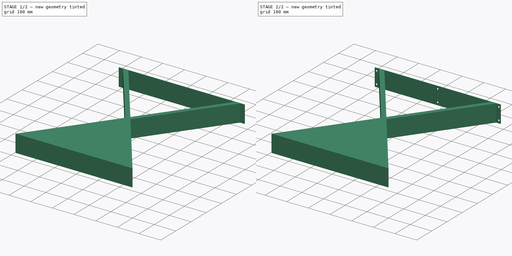
[diagram: build sequence overview — one tinted view per stage of 2, left to right]
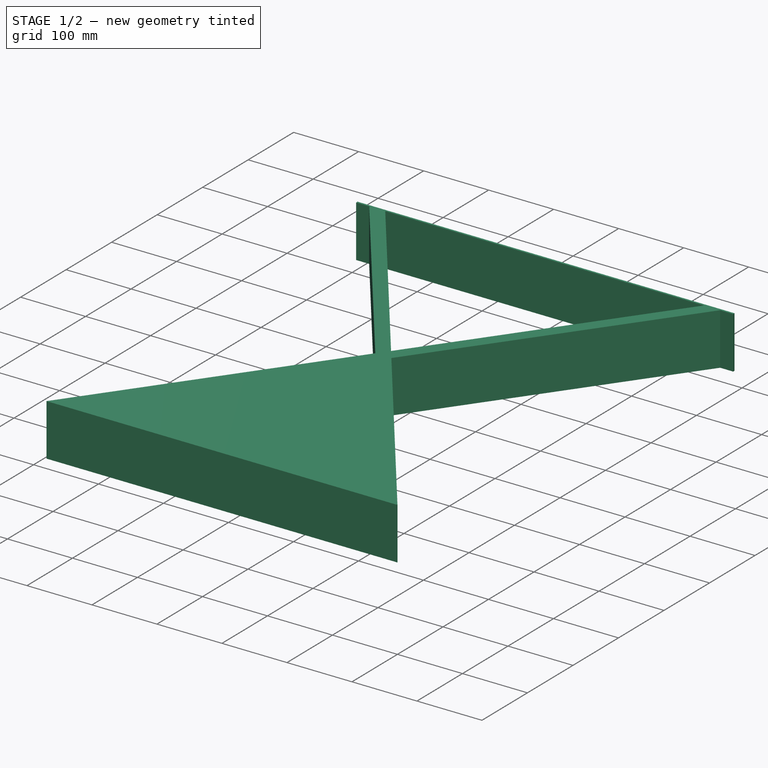
[diagram: stage 1 of 2 — iso view after this stage's code; geometry added in this stage tinted green]
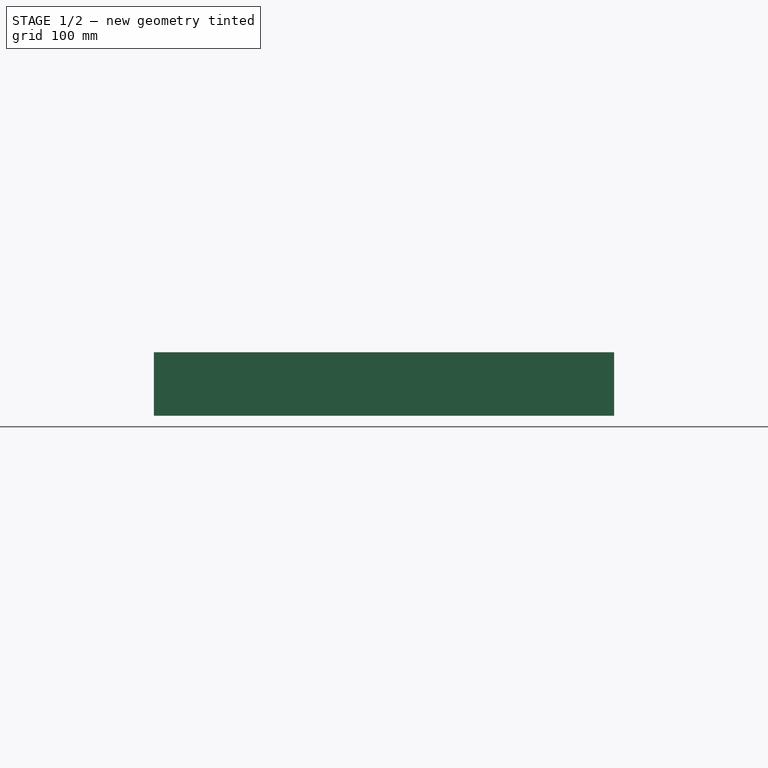
[diagram: stage 1 of 2 — front view after this stage's code; geometry added in this stage tinted green]
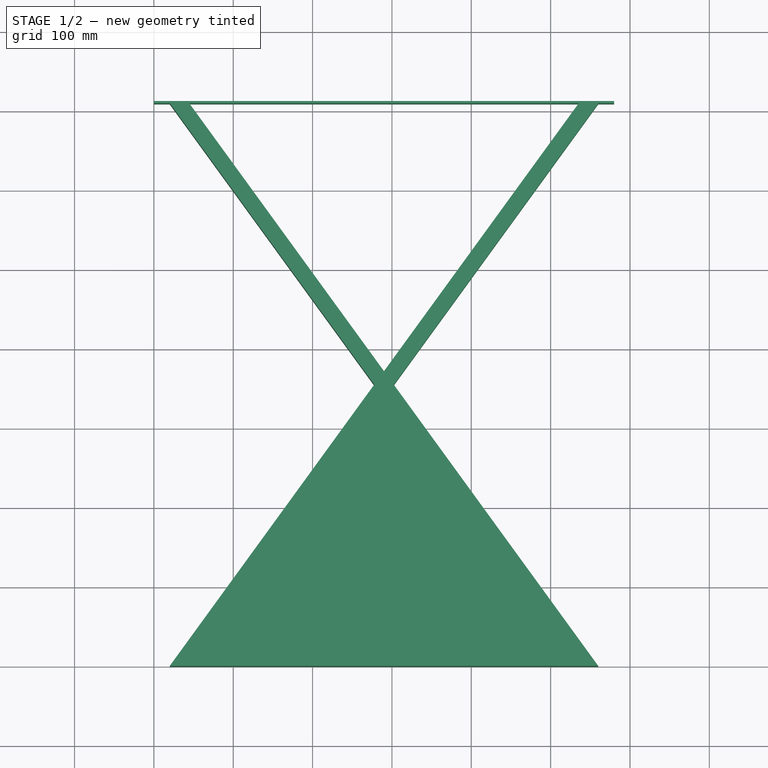
[diagram: stage 1 of 2 — top view after this stage's code; geometry added in this stage tinted green]
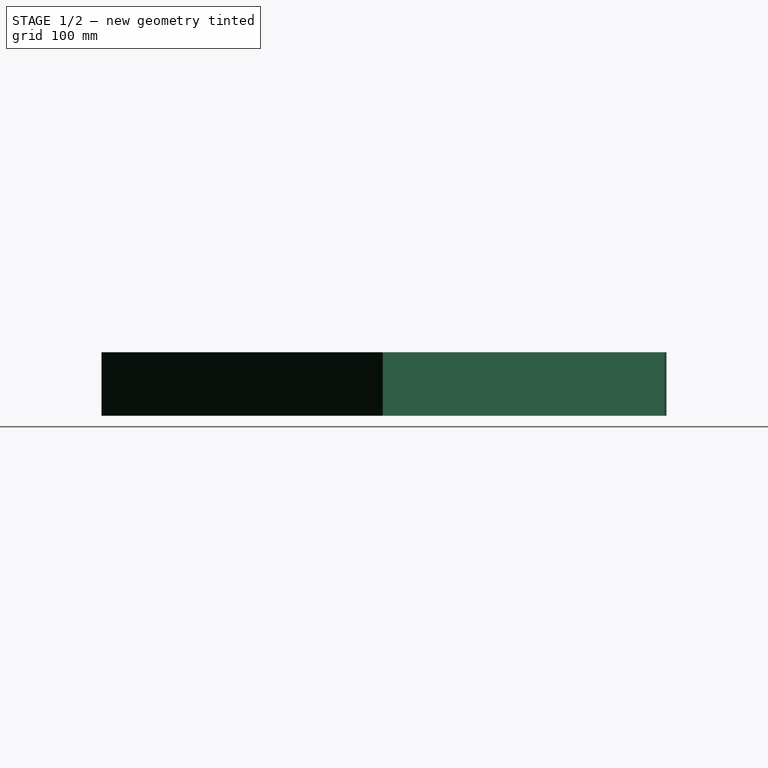
[diagram: stage 1 of 2 — right view after this stage's code; geometry added in this stage tinted green]
FCSTD DOCUMENT  (FreeCAD 1.0R39109 (Git))
Label: Pieds_REI-acier-57
License: All rights reserved
LicenseURL: http://en.wikipedia.org/wiki/All_rights_reserved
objects: Sketcher::SketchObject×2, PartDesign::Pad×1, PartDesign::Pocket×1, PartDesign::Body×1, App::Part×1
note: 11 computed .brp shape members not serialized (recipe doc carries the construction recipe); baked Part::Feature solids carry a one-line shape summary decoded from their .brp

FEATURE [Sketcher::SketchObject] Sketch
  ArcFitTolerance = 1e-06
  AttachmentSupport = -> [XY_Plane]
  FullyConstrained = true
  MakeInternals = false
  MapMode = 5
  sketch-geometry (20):
    g0: LineSegment StartX=20 StartY=0 StartZ=0 EndX=560 EndY=2.42e-14 EndZ=0
    g1: LineSegment [constr] StartX=533.096 StartY=3 StartZ=0 EndX=46.9043 EndY=3 EndZ=0
    g2: LineSegment [constr] StartX=46.9043 StartY=3 StartZ=0 EndX=290 EndY=337.49 EndZ=0
    g3: LineSegment StartX=20 StartY=0 StartZ=0 EndX=277.638 EndY=354.5 EndZ=0
    g4: LineSegment StartX=44.724 StartY=709 StartZ=0 EndX=290 EndY=371.51 EndZ=0
    g5: LineSegment StartX=290 StartY=371.51 StartZ=0 EndX=535.276 EndY=709 EndZ=0
    g6: LineSegment StartX=302.362 StartY=354.5 StartZ=0 EndX=560 EndY=2.42e-14 EndZ=0
    g7: LineSegment [constr] StartX=533.096 StartY=3 StartZ=0 EndX=290 EndY=337.49 EndZ=0
    g8: LineSegment StartX=302.362 StartY=354.5 StartZ=0 EndX=560 EndY=709 EndZ=0
    g9: LineSegment StartX=277.638 StartY=354.5 StartZ=0 EndX=20 EndY=709 EndZ=0
    g10: LineSegment [constr] StartX=277.638 StartY=354.5 StartZ=0 EndX=290 EndY=371.51 EndZ=0
    g11: LineSegment [constr] StartX=290 StartY=371.51 StartZ=0 EndX=302.362 EndY=354.5 EndZ=0
    g12: LineSegment [constr] StartX=302.362 StartY=354.5 StartZ=0 EndX=290 EndY=337.49 EndZ=0
    g13: LineSegment [constr] StartX=290 StartY=337.49 StartZ=0 EndX=277.638 EndY=354.5 EndZ=0
    g14: LineSegment StartX=20 StartY=709 StartZ=0 EndX=0 EndY=709 EndZ=0
    g15: LineSegment StartX=0 StartY=709 StartZ=0 EndX=0 EndY=712 EndZ=0
    g16: LineSegment StartX=0 StartY=712 StartZ=0 EndX=580 EndY=712 EndZ=0
    g17: LineSegment StartX=535.276 StartY=709 StartZ=0 EndX=44.724 EndY=709 EndZ=0
    g18: LineSegment StartX=560 StartY=709 StartZ=0 EndX=580 EndY=709 EndZ=0
    g19: LineSegment StartX=580 StartY=712 StartZ=0 EndX=580 EndY=709 EndZ=0
  constraints (55):
    c: Distance(g0) = 540
    c: PointOnObject(g15,g-2)
    c: Horizontal(g1)
    c: Coincident(g2,g1)
    c: Coincident(g3,g0)
    c: Coincident(g5,g4)
    c: Coincident(g6,g0)
    c: Coincident(g7,g1)
    c: Coincident(g7,g2)
    c: Parallel(g6,g4)
    c: Parallel(g3,g5)
    c: Distance(g1,g0) = 3
    c: Distance(g2,g6) = 20
    c: Parallel(g7,g6)
    c: Parallel(g3,g2)
    c: Distance(g1,g3) = 20
    c: Coincident(g9,g3)
    c: DistanceX(g15,g9) = 20
    c: Distance(g4,g9) = 20
    c: Parallel(g9,g4)
    c: Distance(g5,g8) = 20
    c: Parallel(g8,g5)
    c: Coincident(g10,g3)
    c: Coincident(g10,g4)
    c: Coincident(g11,g4)
    c: Coincident(g12,g2)
    c: Coincident(g13,g2)
    c: Coincident(g13,g3)
    c: Parallel(g10,g3)
    c: Parallel(g11,g4)
    c: Coincident(g14,g9)
    c: Horizontal(g14)
    c: Coincident(g15,g14)
    c: Horizontal(g16)
    c: Coincident(g17,g5)
    c: Coincident(g17,g4)
    c: Horizontal(g17)
    c: Horizontal(g4,g9)
    c: Coincident(g6,g8)
    c: Coincident(g6,g12)
    c: Coincident(g11,g6)
    c: DistanceX(g16,g16) = 580
    c: DistanceY(g-1,g15) = 712
    c: Vertical(g15)
    c: Coincident(g16,g15)
    c: Tangent(g0,g-1) = -1.5708
    c: DistanceX(g-1,g0) = 20
    c: Coincident(g18,g8)
    c: Horizontal(g18)
    c: Coincident(g19,g16)
    c: Vertical(g19)
    c: Equal(g19,g15)
    c: DistanceY(g19,g19) = 3
    c: Equal(g18,g14)
    c: Coincident(g19,g18)
FEATURE [PartDesign::Pad] Pad
  Direction = (0,0,1)
  Length = 80
  Length2 = 10
  Midplane = true
  Profile = -> Sketch
  ReferenceAxis = -> Sketch [N_Axis]
  Refine = true
  Suppressed = false
  Type = 0
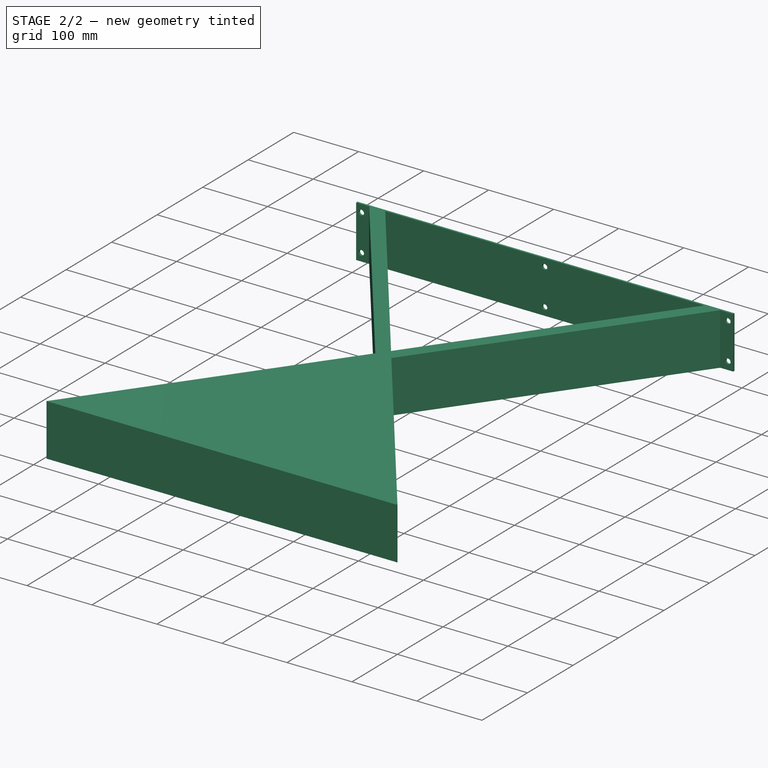
[diagram: stage 2 of 2 — iso view after this stage's code; geometry added in this stage tinted green]
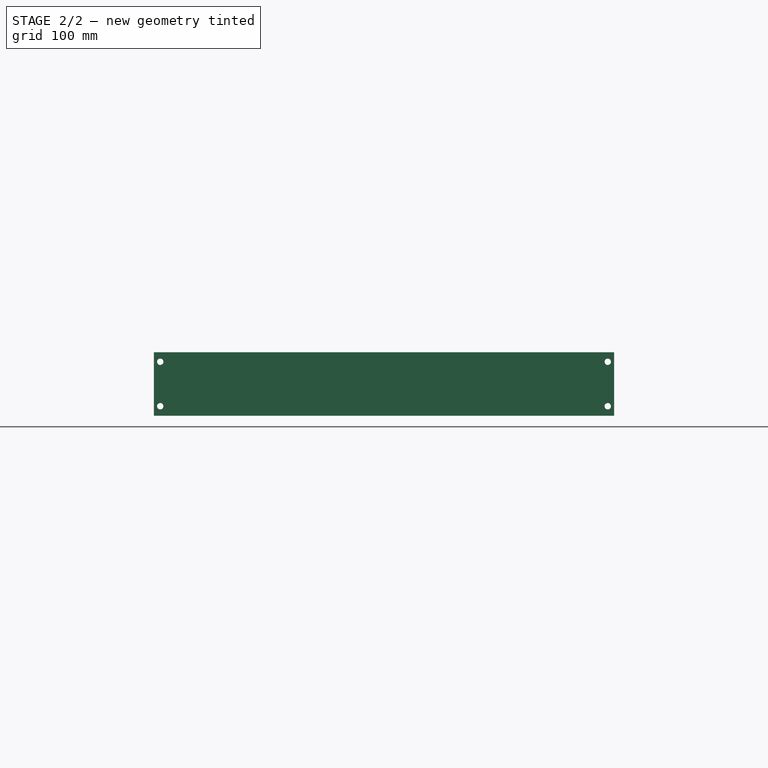
[diagram: stage 2 of 2 — front view after this stage's code; geometry added in this stage tinted green]
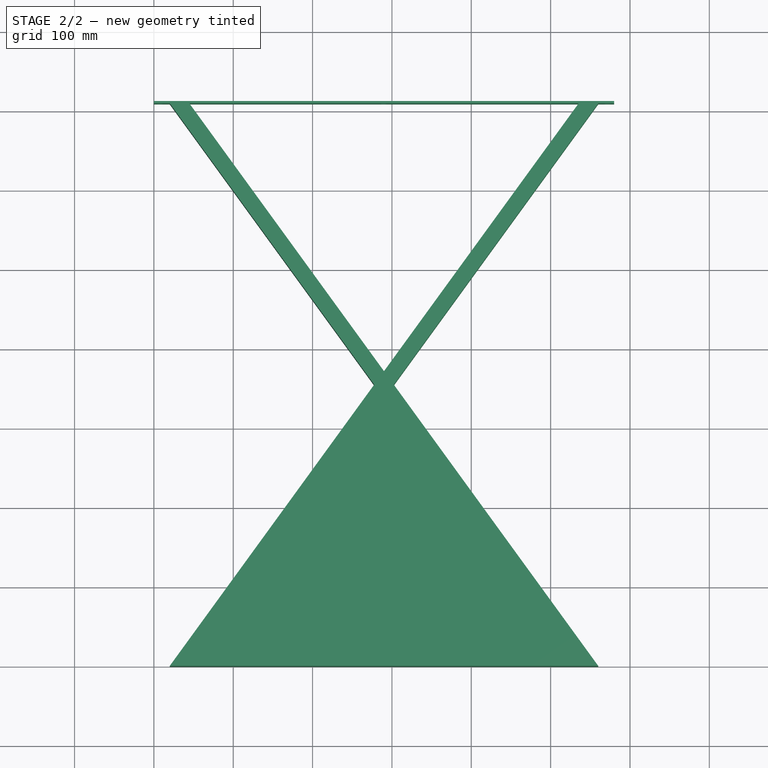
[diagram: stage 2 of 2 — top view after this stage's code; geometry added in this stage tinted green]
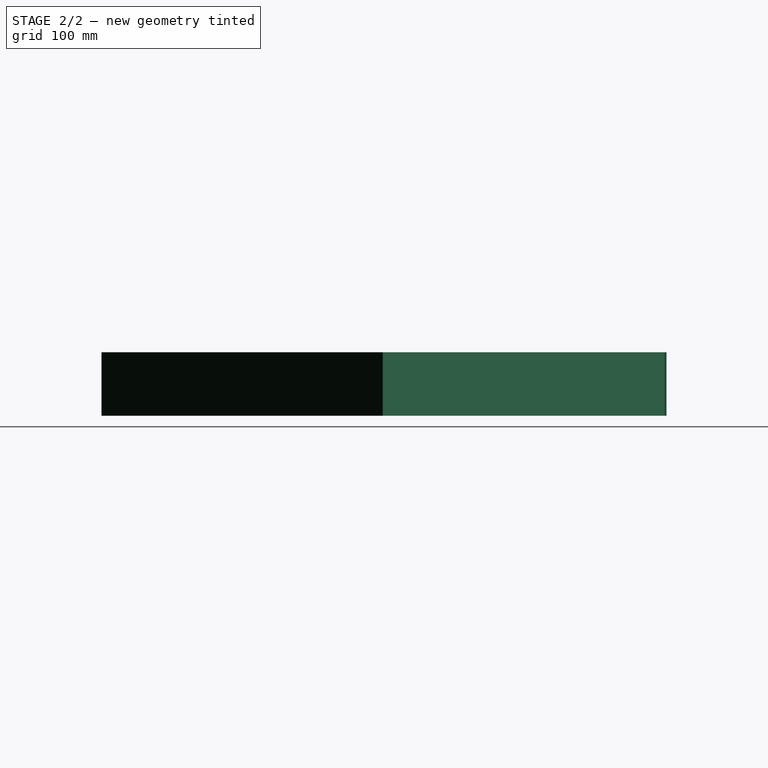
[diagram: stage 2 of 2 — right view after this stage's code; geometry added in this stage tinted green]
FEATURE [Sketcher::SketchObject] Sketch002
  ArcFitTolerance = 1e-06
  AttachmentOffset = pos=(0,0,-710) rot=(0,0,1;0rad)
  AttachmentSupport = -> [XZ_Plane]
  FullyConstrained = true
  MakeInternals = false
  MapMode = 5
  Placement = pos=(0,710,-1.577e-13) rot=(1,0,0;1.5708rad)
  sketch-geometry (15):
    g0: Circle CenterX=8 CenterY=28 CenterZ=0 NormalX=0 NormalY=0 NormalZ=1 AngleXU=0 Radius=4
    g1: Circle CenterX=290 CenterY=28 CenterZ=0 NormalX=0 NormalY=0 NormalZ=1 AngleXU=0 Radius=4
    g2: Circle CenterX=572 CenterY=28 CenterZ=0 NormalX=0 NormalY=0 NormalZ=1 AngleXU=0 Radius=4
    g3: LineSegment [constr] StartX=290 StartY=28 StartZ=0 EndX=8 EndY=28 EndZ=0
    g4: LineSegment [constr] StartX=290 StartY=28 StartZ=0 EndX=572 EndY=28 EndZ=0
    g5: LineSegment [constr] StartX=572 StartY=28 StartZ=0 EndX=572 EndY=-28 EndZ=0
    g6: LineSegment [constr] StartX=572 StartY=-28 StartZ=0 EndX=290 EndY=-28 EndZ=0
    g7: LineSegment [constr] StartX=290 StartY=-28 StartZ=0 EndX=8 EndY=-28 EndZ=0
    g8: LineSegment [constr] StartX=8 StartY=-28 StartZ=0 EndX=8 EndY=28 EndZ=0
    g9: Circle CenterX=572 CenterY=-28 CenterZ=0 NormalX=0 NormalY=0 NormalZ=1 AngleXU=0 Radius=4
    g10: Circle CenterX=290 CenterY=-28 CenterZ=0 NormalX=0 NormalY=0 NormalZ=1 AngleXU=0 Radius=4
    g11: Circle CenterX=8 CenterY=-28 CenterZ=0 NormalX=0 NormalY=0 NormalZ=1 AngleXU=0 Radius=4
    g12: LineSegment [constr] StartX=0 StartY=0 StartZ=0 EndX=580 EndY=0 EndZ=0
    g13: Circle [constr] CenterX=290 CenterY=28 CenterZ=0 NormalX=0 NormalY=0 NormalZ=1 AngleXU=0 Radius=291.349
    g14: Circle [constr] CenterX=290 CenterY=28 CenterZ=0 NormalX=0 NormalY=0 NormalZ=1 AngleXU=0 Radius=291.349
  constraints (36):
    c: Equal(g0,g1)
    c: Equal(g0,g2)
    c: Diameter(g0) = 8
    c: Horizontal(g3)
    c: DistanceX(g3,g3) = 282
    c: Coincident(g3,g0)
    c: Coincident(g3,g1)
    c: Coincident(g4,g1)
    c: Coincident(g4,g2)
    c: Horizontal(g4)
    c: Coincident(g5,g2)
    c: Coincident(g6,g5)
    c: Horizontal(g6)
    c: Coincident(g7,g6)
    c: Horizontal(g7)
    c: Coincident(g8,g7)
    c: Coincident(g8,g0)
    c: Vertical(g8)
    c: Equal(g7,g6)
    c: Equal(g3,g4)
    c: DistanceY(g8,g8) = 56
    c: Coincident(g9,g5)
    c: Coincident(g10,g6)
    c: Coincident(g11,g7)
    c: Equal(g11,g10)
    c: Equal(g10,g9)
    c: Equal(g9,g1)
    c: Symmetric(g5,g2,g-1)
    c: Coincident(g12,g-1)
    c: PointOnObject(g12,g-1)
    c: DistanceX(g12,g12) = 580
    c: Coincident(g13,g1)
    c: PointOnObject(g12,g13)
    c: Coincident(g14,g1)
    c: PointOnObject(g12,g14)
    c: Equal(g14,g13)
FEATURE [PartDesign::Pocket] Pocket
  BaseFeature = -> Pad
  Direction = (0,1,-2e-16)
  Length = 5
  Length2 = 5
  Offset = 10
  Profile = -> Sketch002
  ReferenceAxis = -> Sketch002 [N_Axis]
  Refine = true
  Suppressed = false
  Type = 4
FEATURE [PartDesign::Body] Body  label="Pied_Body"
  AllowCompound = false
  Group = -> [Sketch,Pad,Sketch002,Pocket]
  Origin = -> Origin
  Tip = -> Pocket
FEATURE [App::Part] Part  label="Pied"
  Group = -> [Body]
  Origin = -> Origin001
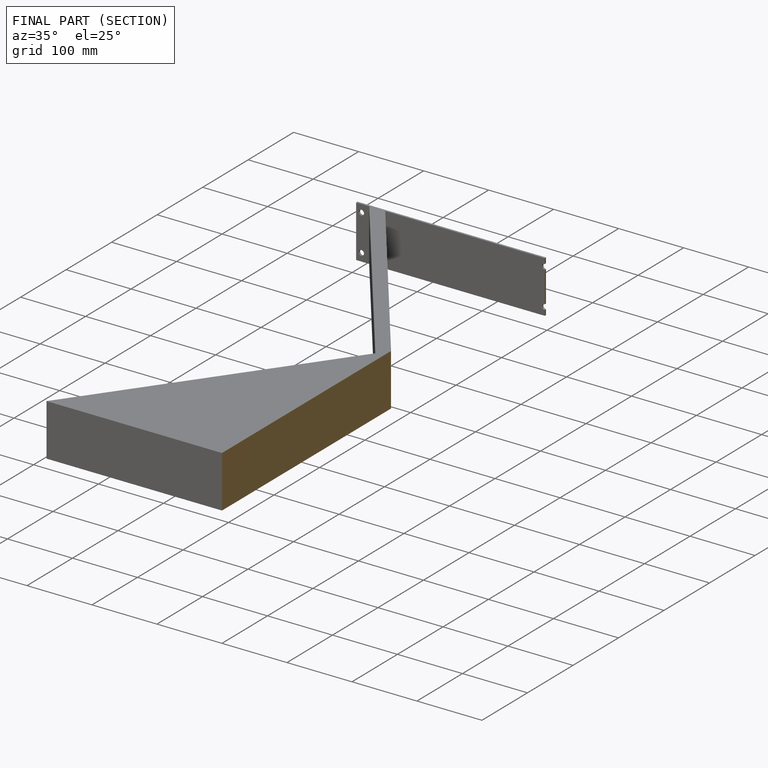
[diagram: finished part — half-section view (interior)]
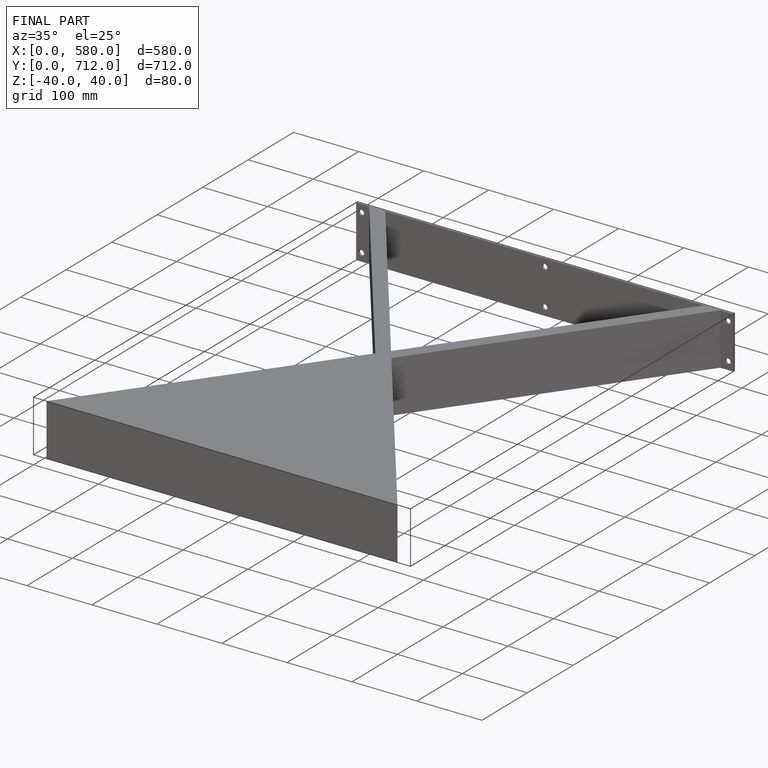
[diagram: finished part — iso view with bounding-box wireframe]
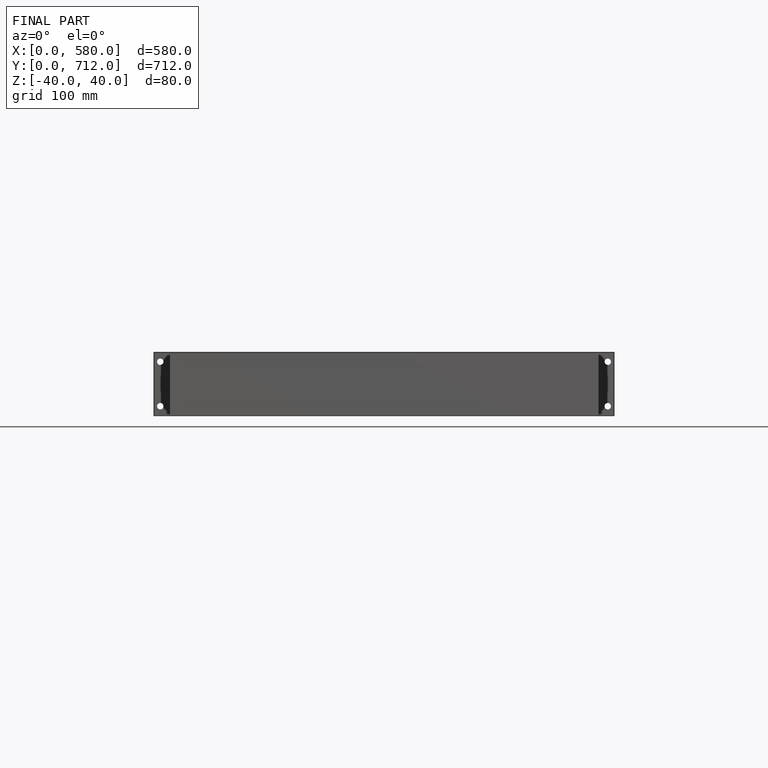
[diagram: finished part — front view with bounding-box wireframe]
